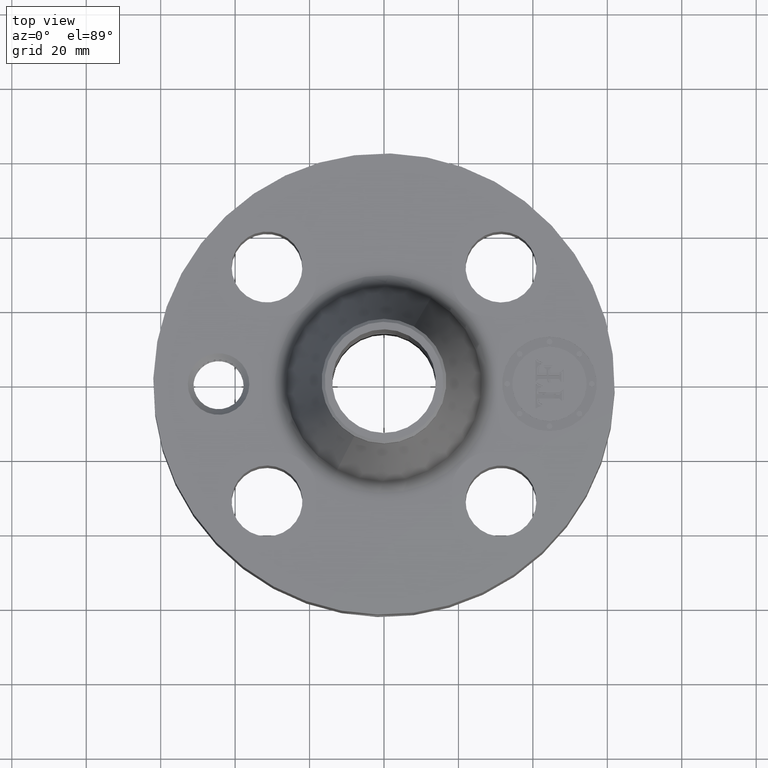
[diagram: clean part render]
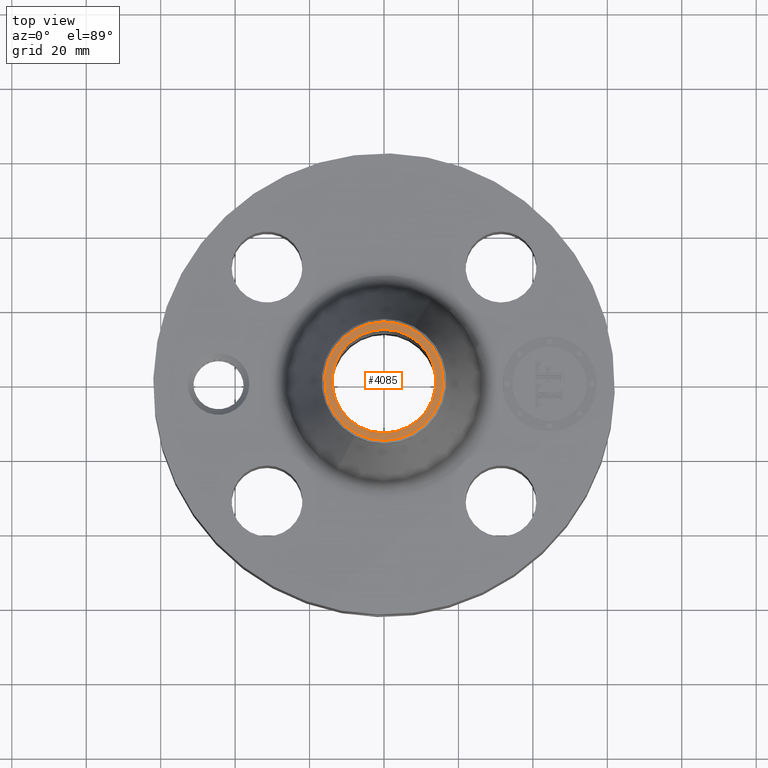
[diagram: same view with one face highlighted and labeled with its STEP entity id]
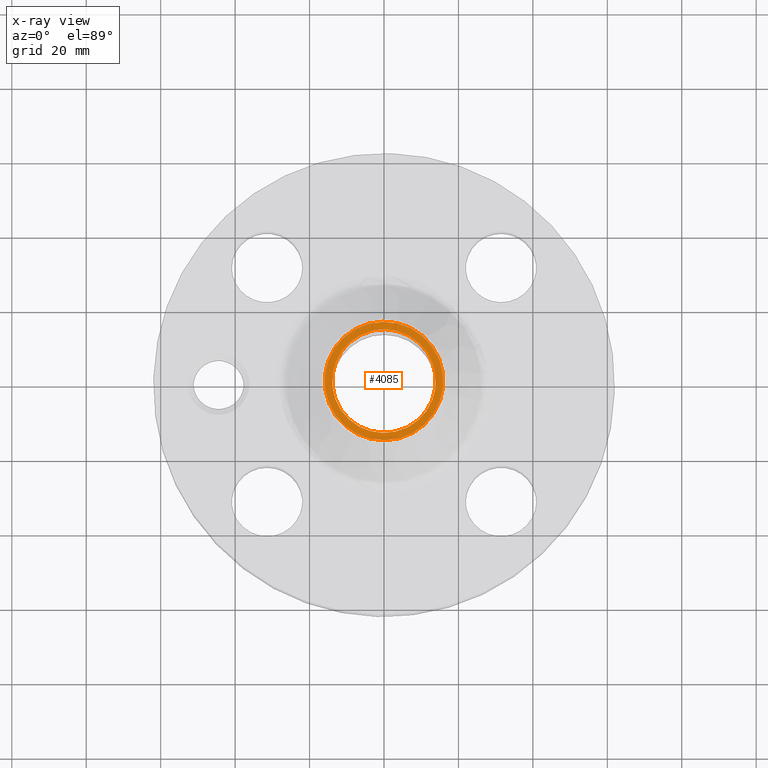
[diagram: x-ray of the same camera — body ghosted, the highlighted face saturated]
A machine part, top view. The second image highlights one B-rep face of the part: STEP entity #4085.
The next image is the same camera in x-ray: the body ghosted, the highlighted face saturated — about 0% of this face is hidden behind the body in this view.
In plain terms, the highlighted planar face has unit normal (0, 0, -1).
Its self-contained STEP definition (entity closure, byte-faithful):
#2816=AXIS2_PLACEMENT_3D('Circle Axis2P3D',#2814,#2815,$) ;
#2884=AXIS2_PLACEMENT_3D('Circle Axis2P3D',#2882,#2883,$) ;
#4061=AXIS2_PLACEMENT_3D('Plane Axis2P3D',#4058,#4059,#4060) ;
#4065=AXIS2_PLACEMENT_3D('Circle Axis2P3D',#4063,#4064,$) ;
#4074=AXIS2_PLACEMENT_3D('Circle Axis2P3D',#4072,#4073,$) ;
#2814=CARTESIAN_POINT('Axis2P3D Location',(0.,0.,3.50000000001)) ;
#2818=CARTESIAN_POINT('Vertex',(0.262964907925,0.481354035199,3.50000000001)) ;
#2820=CARTESIAN_POINT('Vertex',(-0.262964907925,-0.481354035199,3.50000000001)) ;
#2882=CARTESIAN_POINT('Axis2P3D Location',(0.,0.,3.50000000001)) ;
#4058=CARTESIAN_POINT('Axis2P3D Location',(0.,0.660000000003,3.50000000001)) ;
#4063=CARTESIAN_POINT('Axis2P3D Location',(0.,0.,3.50000000001)) ;
#4067=CARTESIAN_POINT('Vertex',(0.300714950335,-0.550455024324,3.50000000001)) ;
#4069=CARTESIAN_POINT('Vertex',(-0.300714950335,0.550455024324,3.50000000001)) ;
#4072=CARTESIAN_POINT('Axis2P3D Location',(0.,0.,3.50000000001)) ;
#2815=DIRECTION('Axis2P3D Direction',(0.,0.,-0.0393700787402)) ;
#2883=DIRECTION('Axis2P3D Direction',(0.,0.,-0.0393700787402)) ;
#4059=DIRECTION('Axis2P3D Direction',(0.,0.,-0.0393700787402)) ;
#4060=DIRECTION('Axis2P3D XDirection',(0.0393700787402,0.,0.)) ;
#4064=DIRECTION('Axis2P3D Direction',(0.,0.,-0.0393700787402)) ;
#4073=DIRECTION('Axis2P3D Direction',(0.,0.,-0.0393700787402)) ;
#4078=ORIENTED_EDGE('',*,*,#4071,.T.) ;
#4079=ORIENTED_EDGE('',*,*,#4076,.T.) ;
#4082=ORIENTED_EDGE('',*,*,#2886,.T.) ;
#4083=ORIENTED_EDGE('',*,*,#2822,.T.) ;
#4084=FACE_BOUND('',#4081,.T.) ;
#4085=ADVANCED_FACE('PartBody',(#4080,#4084),#4062,.F.) ;
#2817=CIRCLE('generated circle',#2816,0.548500000002) ;
#2885=CIRCLE('generated circle',#2884,0.548500000002) ;
#4066=CIRCLE('generated circle',#4065,0.627240157483) ;
#4075=CIRCLE('generated circle',#4074,0.627240157483) ;
#2822=EDGE_CURVE('',#2819,#2821,#2817,.T.) ;
#2886=EDGE_CURVE('',#2821,#2819,#2885,.T.) ;
#4071=EDGE_CURVE('',#4068,#4070,#4066,.F.) ;
#4076=EDGE_CURVE('',#4070,#4068,#4075,.F.) ;
#4077=EDGE_LOOP('',(#4078,#4079)) ;
#4081=EDGE_LOOP('',(#4082,#4083)) ;
#4080=FACE_OUTER_BOUND('',#4077,.T.) ;
#4062=PLANE('',#4061) ;
#2819=VERTEX_POINT('',#2818) ;
#2821=VERTEX_POINT('',#2820) ;
#4068=VERTEX_POINT('',#4067) ;
#4070=VERTEX_POINT('',#4069) ;